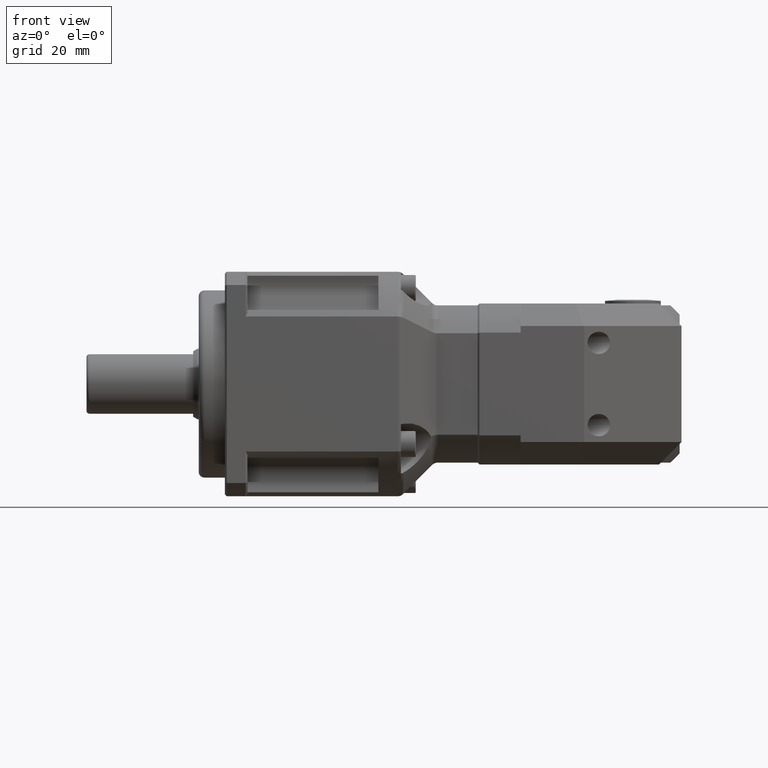
[diagram: clean part render]
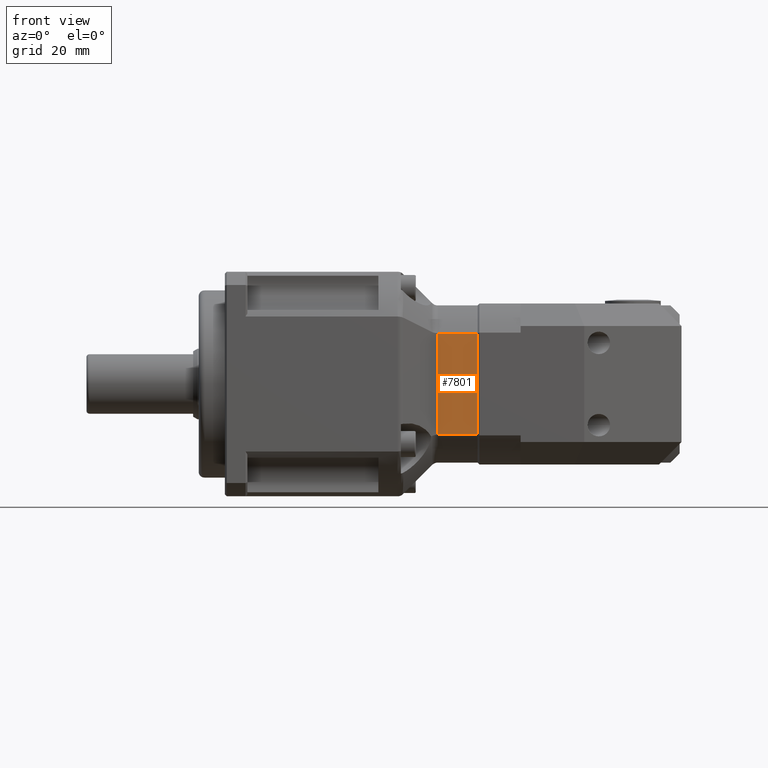
[diagram: same view with one face highlighted and labeled with its STEP entity id]
A machine part, front view. The second image highlights one B-rep face of the part: STEP entity #7801.
In plain terms, the highlighted planar face has unit normal (0, -1, -0).
Its self-contained STEP definition (entity closure, byte-faithful):
#179=B_SPLINE_CURVE_WITH_KNOTS('',3,(#13335,#13336,#13337,#13338),
 .UNSPECIFIED.,.F.,.F.,(4,4),(0.,0.00615799524636798),.UNSPECIFIED.);
#180=B_SPLINE_CURVE_WITH_KNOTS('',3,(#13339,#13340,#13341,#13342),
 .UNSPECIFIED.,.F.,.F.,(4,4),(0.22323512518196,0.230746717443972),
 .UNSPECIFIED.);
#604=LINE('',#12246,#999);
#697=LINE('',#12817,#1092);
#721=LINE('',#13330,#1116);
#722=LINE('',#13334,#1117);
#999=VECTOR('',#9857,27.1293199325011);
#1092=VECTOR('',#10286,10.6102454127815);
#1116=VECTOR('',#10370,10.6102454127815);
#1117=VECTOR('',#10373,27.1327865118412);
#1381=PLANE('',#8599);
#2018=FACE_OUTER_BOUND('',#2665,.T.);
#2665=EDGE_LOOP('',(#6395,#6396,#6397,#6398,#6399,#6400));
#3611=VERTEX_POINT('',#12244);
#3612=VERTEX_POINT('',#12245);
#3742=VERTEX_POINT('',#12812);
#3797=VERTEX_POINT('',#13325);
#3798=VERTEX_POINT('',#13332);
#3799=VERTEX_POINT('',#13333);
#4429=EDGE_CURVE('',#3611,#3612,#604,.T.);
#4639=EDGE_CURVE('',#3611,#3742,#697,.T.);
#4722=EDGE_CURVE('',#3797,#3612,#721,.T.);
#4723=EDGE_CURVE('',#3798,#3799,#722,.T.);
#4724=EDGE_CURVE('',#3797,#3798,#179,.T.);
#4725=EDGE_CURVE('',#3799,#3742,#180,.T.);
#6395=ORIENTED_EDGE('',*,*,#4723,.F.);
#6396=ORIENTED_EDGE('',*,*,#4724,.F.);
#6397=ORIENTED_EDGE('',*,*,#4722,.T.);
#6398=ORIENTED_EDGE('',*,*,#4429,.F.);
#6399=ORIENTED_EDGE('',*,*,#4639,.T.);
#6400=ORIENTED_EDGE('',*,*,#4725,.F.);
#7801=ADVANCED_FACE('',(#2018),#1381,.T.);
#8599=AXIS2_PLACEMENT_3D('',#13331,#10371,#10372);
#9857=DIRECTION('',(-2.46234633523121E-15,1.89510279162485E-15,-1.));
#10286=DIRECTION('',(-1.,-1.03196878897672E-16,2.46234633523121E-15));
#10370=DIRECTION('',(1.,1.03196878897672E-16,-2.46234633523121E-15));
#10371=DIRECTION('center_axis',(1.03196878897667E-16,-1.,-1.89510279162485E-15));
#10372=DIRECTION('ref_axis',(2.1316282072803E-15,-1.90958360235527E-15,
1.));
#10373=DIRECTION('',(2.84928355276711E-15,-1.89510279162485E-15,1.));
#12244=CARTESIAN_POINT('',(-35.4042359944936,-2.73044976393374,-30.6102268464456));
#12245=CARTESIAN_POINT('',(-35.4042359944937,-2.7304497639337,-57.7395467789466));
#12246=CARTESIAN_POINT('',(-35.4042359944936,-2.73044976393376,-23.1748868126961));
#12812=CARTESIAN_POINT('',(-46.0144814072752,-2.73044976393374,-30.6102268464455));
#12817=CARTESIAN_POINT('',(-35.4042359944936,-2.73044976393374,-30.6102268464456));
#13325=CARTESIAN_POINT('',(-46.0144814072752,-2.73044976393369,-57.7395467789466));
#13330=CARTESIAN_POINT('',(-35.4042359944937,-2.7304497639337,-57.7395467789466));
#13331=CARTESIAN_POINT('Origin',(-35.4042359944937,-2.73044976393368,-65.1748868126961));
#13332=CARTESIAN_POINT('',(-46.0758088697475,-2.73044976393369,-57.7412800686167));
#13333=CARTESIAN_POINT('',(-46.0758088697474,-2.73044976393374,-30.6084935567755));
#13334=CARTESIAN_POINT('',(-46.0758088697475,-2.73044976393368,-63.6887650013561));
#13335=CARTESIAN_POINT('Ctrl Pts',(-46.01448140677,-2.7304485542381,-57.7395456676545));
#13336=CARTESIAN_POINT('Ctrl Pts',(-46.0350069196619,-2.73044870221834,
-57.7395454190942));
#13337=CARTESIAN_POINT('Ctrl Pts',(-46.0554455679546,-2.73046335921004,
-57.7401366266834));
#13338=CARTESIAN_POINT('Ctrl Pts',(-46.0757920681076,-2.73048876358719,
-57.7413039057681));
#13339=CARTESIAN_POINT('Ctrl Pts',(-46.0757920681075,-2.73048876358724,
-30.608469719624));
#13340=CARTESIAN_POINT('Ctrl Pts',(-46.0554475580673,-2.73046336672203,
-30.6096368923171));
#13341=CARTESIAN_POINT('Ctrl Pts',(-46.0350088989554,-2.73044870223266,
-30.610228206322));
#13342=CARTESIAN_POINT('Ctrl Pts',(-46.0144814067699,-2.73044855423815,
-30.6102279577377));